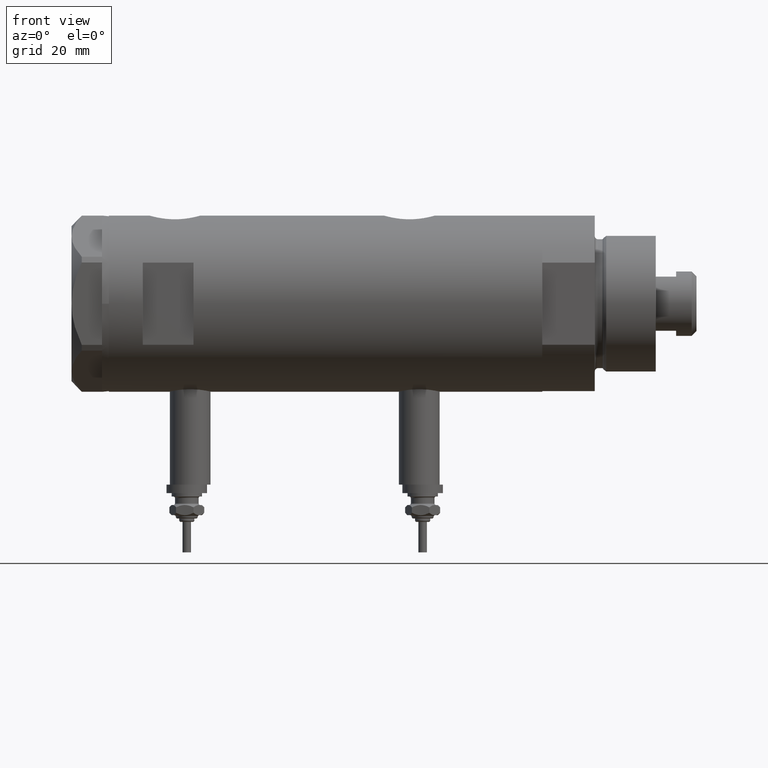
[diagram: clean part render]
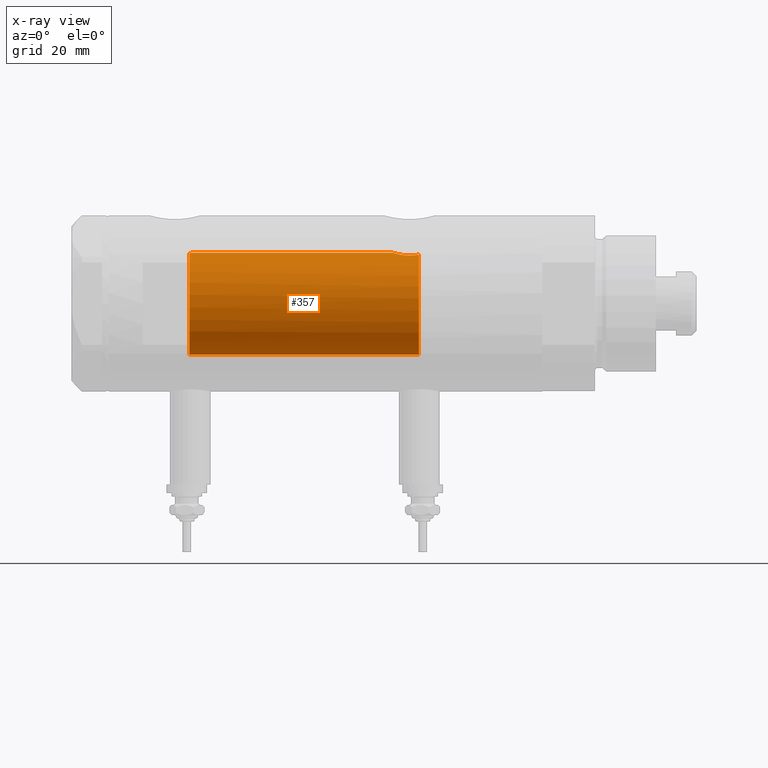
[diagram: x-ray — body ghosted, one internal face saturated and labeled with its STEP entity id]
A machine part, front view, then the same camera in x-ray: the body is ghosted and one INTERNAL B-rep face — a face not visible from any outside direction — is saturated and labeled: STEP entity #357.
In plain terms, the highlighted cylindrical surface (partial cylindrical patch) has radius 15 mm, axis along (1, 0, -0).
Its self-contained STEP definition (entity closure, byte-faithful):
#114 = DIRECTION ( 'NONE',  ( -0.000000000000000000, -0.000000000000000000, -1.000000000000000000 ) ) ;
#333 = VERTEX_POINT ( 'NONE', #761 ) ;
#357 = ADVANCED_FACE ( 'NONE', ( #2739 ), #4703, .F. ) ;
#399 = CARTESIAN_POINT ( 'NONE',  ( 14.46277203719950855, -3.978470183374505975, -27.55000000000000426 ) ) ;
#594 = DIRECTION ( 'NONE',  ( 0.000000000000000000, 0.000000000000000000, -1.000000000000000000 ) ) ;
#691 = VERTEX_POINT ( 'NONE', #3783 ) ;
#744 = CARTESIAN_POINT ( 'NONE',  ( 0.000000000000000000, 0.000000000000000000, -27.55000000000000426 ) ) ;
#761 = CARTESIAN_POINT ( 'NONE',  ( -15.00000000000000000, 0.000000000000000000, -27.55000000000000426 ) ) ;
#859 = B_SPLINE_CURVE_WITH_KNOTS ( 'NONE', 3,
 ( #399, #4333, #938, #973, #6185, #2822, #4269, #3398, #1921, #3780, #3873, #5829, #2882, #4883, #5734, #5795, #4298, #6283, #1316, #2377, #4849, #3846, #1352, #5704, #5290, #4753, #1415, #3812, #3362, #5323 ),
 .UNSPECIFIED., .F., .F.,
 ( 4, 2, 2, 2, 2, 2, 2, 2, 2, 2, 2, 2, 2, 2, 4 ),
 ( 0.004672505804584291961, 0.005337629501999298885, 0.006002753199414305810, 0.006667876896829313602, 0.007333000594244319659, 0.007998124291659327451, 0.008663247989074335242, 0.009328371686489341300, 0.009993495383904347357, 0.01132374277873436988, 0.01265399017356439067, 0.01331911387097940366, 0.01398423756839441666, 0.01464936126580942966, 0.01531448496322444265 ),
 .UNSPECIFIED. ) ;
#938 = CARTESIAN_POINT ( 'NONE',  ( 14.39424372609267522, -4.221002267729139668, -27.17893131093289938 ) ) ;
#973 = CARTESIAN_POINT ( 'NONE',  ( 14.33349657381506681, -4.422893686125039636, -26.78827841538882737 ) ) ;
#1030 = CARTESIAN_POINT ( 'NONE',  ( 14.93900636919599911, -1.364886281976677163, 39.77622504971314044 ) ) ;
#1152 = VERTEX_POINT ( 'NONE', #5684 ) ;
#1316 = CARTESIAN_POINT ( 'NONE',  ( 14.49994286062941207, -3.853373987417221702, -21.74743896782911534 ) ) ;
#1352 = CARTESIAN_POINT ( 'NONE',  ( 14.84733308118440398, -2.144376633039214219, -20.37751912952715472 ) ) ;
#1369 = EDGE_LOOP ( 'NONE', ( #4366, #4994, #6203, #3062, #5851, #5124 ) ) ;
#1415 = CARTESIAN_POINT ( 'NONE',  ( 14.97537530859971966, -0.8874117095427782598, -19.96137464055827948 ) ) ;
#1571 = CARTESIAN_POINT ( 'NONE',  ( 14.98404828787190191, -0.7909490205761877668, 39.63356230794191504 ) ) ;
#1894 = DIRECTION ( 'NONE',  ( -0.000000000000000000, -0.000000000000000000, -1.000000000000000000 ) ) ;
#1921 = CARTESIAN_POINT ( 'NONE',  ( 14.19797987272029438, -4.839174951492910104, -25.29741451501410765 ) ) ;
#1990 = CARTESIAN_POINT ( 'NONE',  ( 14.85289483991917336, -2.102865829523694607, 40.05860377881607093 ) ) ;
#2017 = CARTESIAN_POINT ( 'NONE',  ( 15.00000000000000000, 0.000000000000000000, 39.58500000000000085 ) ) ;
#2237 = CARTESIAN_POINT ( 'NONE',  ( 0.000000000000000000, 0.000000000000000000, 40.15000000000000568 ) ) ;
#2377 = CARTESIAN_POINT ( 'NONE',  ( 14.64727859494137263, -3.248701865452403581, -21.10174013696654782 ) ) ;
#2382 = LINE ( 'NONE', #6250, #5862 ) ;
#2401 = CARTESIAN_POINT ( 'NONE',  ( 14.46277203719950855, -3.978470183374505975, -27.55000000000000426 ) ) ;
#2407 = VERTEX_POINT ( 'NONE', #5979 ) ;
#2522 = VERTEX_POINT ( 'NONE', #2401 ) ;
#2536 = CARTESIAN_POINT ( 'NONE',  ( 0.000000000000000000, 0.000000000000000000, 63.95000000000000995 ) ) ;
#2542 = DIRECTION ( 'NONE',  ( -1.000000000000000000, 0.000000000000000000, 0.000000000000000000 ) ) ;
#2576 = CIRCLE ( 'NONE', #6152, 15.00000000000000000 ) ;
#2739 = FACE_OUTER_BOUND ( 'NONE', #1369, .T. ) ;
#2822 = CARTESIAN_POINT ( 'NONE',  ( 14.25856516724843814, -4.658255869285517825, -26.17044016644936733 ) ) ;
#2882 = CARTESIAN_POINT ( 'NONE',  ( 14.20926245015526135, -4.806160851464704287, -23.96377327795615031 ) ) ;
#3009 = CARTESIAN_POINT ( 'NONE',  ( 14.82638779339054480, -2.275571356824482638, 40.15000000000000568 ) ) ;
#3025 = EDGE_CURVE ( 'NONE', #2522, #2407, #859, .T. ) ;
#3062 = ORIENTED_EDGE ( 'NONE', *, *, #5362, .T. ) ;
#3200 = EDGE_CURVE ( 'NONE', #4576, #691, #6202, .T. ) ;
#3362 = CARTESIAN_POINT ( 'NONE',  ( 15.00000000000000000, -0.2216692655473424256, -19.88499999999999801 ) ) ;
#3398 = CARTESIAN_POINT ( 'NONE',  ( 14.20819413761015326, -4.809312895991455505, -25.51713251522166104 ) ) ;
#3780 = CARTESIAN_POINT ( 'NONE',  ( 14.18781489734108270, -4.868896704194245473, -24.85545969036061464 ) ) ;
#3783 = CARTESIAN_POINT ( 'NONE',  ( 14.82638779339054480, -2.275571356824482638, 40.15000000000000568 ) ) ;
#3812 = CARTESIAN_POINT ( 'NONE',  ( 14.99508877558422704, -0.4434836953032585405, -19.90007684727664028 ) ) ;
#3846 = CARTESIAN_POINT ( 'NONE',  ( 14.81710879718117724, -2.343063746046469387, -20.48067662538953471 ) ) ;
#3873 = CARTESIAN_POINT ( 'NONE',  ( 14.18786347641749757, -4.868757996482117711, -24.63322300400293230 ) ) ;
#4095 = VECTOR ( 'NONE', #6183, 1000.000000000000000 ) ;
#4209 = AXIS2_PLACEMENT_3D ( 'NONE', #2237, #6206, #5157 ) ;
#4210 = EDGE_CURVE ( 'NONE', #1152, #333, #5703, .T. ) ;
#4269 = CARTESIAN_POINT ( 'NONE',  ( 14.23846660849503465, -4.718934182878723682, -25.95401121469808459 ) ) ;
#4298 = CARTESIAN_POINT ( 'NONE',  ( 14.33594561531103473, -4.414979644548147952, -22.69453393419243525 ) ) ;
#4333 = CARTESIAN_POINT ( 'NONE',  ( 14.42775250319760083, -4.105775281508736718, -27.36911445102908758 ) ) ;
#4366 = ORIENTED_EDGE ( 'NONE', *, *, #3200, .F. ) ;
#4576 = VERTEX_POINT ( 'NONE', #5567 ) ;
#4617 = CIRCLE ( 'NONE', #4209, 15.00000000000000000 ) ;
#4690 = EDGE_CURVE ( 'NONE', #1152, #691, #4617, .T. ) ;
#4703 = CYLINDRICAL_SURFACE ( 'NONE', #5771, 15.00000000000000000 ) ;
#4753 = CARTESIAN_POINT ( 'NONE',  ( 14.96064712090283777, -1.106639041422191605, -20.00738179736371336 ) ) ;
#4849 = CARTESIAN_POINT ( 'NONE',  ( 14.72015646623405871, -2.909233045280604113, -20.82572079632733519 ) ) ;
#4883 = CARTESIAN_POINT ( 'NONE',  ( 14.23984499268010673, -4.714778477509576682, -23.53008258614764614 ) ) ;
#4889 = DIRECTION ( 'NONE',  ( -1.000000000000000000, 0.000000000000000000, 0.000000000000000000 ) ) ;
#4994 = ORIENTED_EDGE ( 'NONE', *, *, #6219, .T. ) ;
#4999 = CARTESIAN_POINT ( 'NONE',  ( 14.87720562886504538, -1.924385875533401125, 39.97741675737692901 ) ) ;
#5124 = ORIENTED_EDGE ( 'NONE', *, *, #4690, .T. ) ;
#5157 = DIRECTION ( 'NONE',  ( 1.000000000000000000, 0.000000000000000000, 0.000000000000000000 ) ) ;
#5290 = CARTESIAN_POINT ( 'NONE',  ( 14.92307637240703677, -1.532123959568890248, -20.12726557582076126 ) ) ;
#5323 = CARTESIAN_POINT ( 'NONE',  ( 15.00000000000000000, 5.959273468635536151E-16, -19.88500000000000156 ) ) ;
#5362 = EDGE_CURVE ( 'NONE', #2522, #333, #2576, .T. ) ;
#5567 = CARTESIAN_POINT ( 'NONE',  ( 15.00000000000000000, 0.000000000000000000, 39.58500000000000085 ) ) ;
#5684 = CARTESIAN_POINT ( 'NONE',  ( -15.00000000000000000, 0.000000000000000000, 40.15000000000000568 ) ) ;
#5703 = LINE ( 'NONE', #6109, #4095 ) ;
#5704 = CARTESIAN_POINT ( 'NONE',  ( 14.90017778876745069, -1.739641523727900596, -20.20130925695125867 ) ) ;
#5734 = CARTESIAN_POINT ( 'NONE',  ( 14.25977760983849230, -4.654557688538887739, -23.31736805897653042 ) ) ;
#5771 = AXIS2_PLACEMENT_3D ( 'NONE', #2536, #114, #4889 ) ;
#5795 = CARTESIAN_POINT ( 'NONE',  ( 14.30772250772360188, -4.505024017690379523, -22.90010806953218037 ) ) ;
#5829 = CARTESIAN_POINT ( 'NONE',  ( 14.19858338301463085, -4.837406781463695182, -24.18614104090498884 ) ) ;
#5851 = ORIENTED_EDGE ( 'NONE', *, *, #4210, .F. ) ;
#5862 = VECTOR ( 'NONE', #1894, 1000.000000000000000 ) ;
#5864 = CARTESIAN_POINT ( 'NONE',  ( 14.92029983160078466, -1.555365312915176323, 39.83609703141412695 ) ) ;
#5949 = CARTESIAN_POINT ( 'NONE',  ( 15.00000000000000178, -0.3999014018875941545, 39.58500000000000085 ) ) ;
#5979 = CARTESIAN_POINT ( 'NONE',  ( 15.00000000000000000, 5.959273468635536151E-16, -19.88500000000000156 ) ) ;
#6109 = CARTESIAN_POINT ( 'NONE',  ( -15.00000000000000000, 0.000000000000000000, 63.95000000000000995 ) ) ;
#6152 = AXIS2_PLACEMENT_3D ( 'NONE', #744, #594, #2542 ) ;
#6183 = DIRECTION ( 'NONE',  ( -0.000000000000000000, -0.000000000000000000, -1.000000000000000000 ) ) ;
#6185 = CARTESIAN_POINT ( 'NONE',  ( 14.30602371879161439, -4.510400617436905790, -26.58665028800271557 ) ) ;
#6202 = B_SPLINE_CURVE_WITH_KNOTS ( 'NONE', 3,
 ( #2017, #5949, #1571, #1030, #5864, #4999, #1990, #3009 ),
 .UNSPECIFIED., .F., .F.,
 ( 4, 2, 2, 4 ),
 ( 2.641598245732904660E-19, 0.001182100180564266394, 0.001773150270846399592, 0.002364200361128532789 ),
 .UNSPECIFIED. ) ;
#6203 = ORIENTED_EDGE ( 'NONE', *, *, #3025, .F. ) ;
#6206 = DIRECTION ( 'NONE',  ( 0.000000000000000000, 0.000000000000000000, 1.000000000000000000 ) ) ;
#6219 = EDGE_CURVE ( 'NONE', #4576, #2407, #2382, .T. ) ;
#6250 = CARTESIAN_POINT ( 'NONE',  ( 15.00000000000000000, 1.836970198721029194E-15, 63.95000000000000995 ) ) ;
#6283 = CARTESIAN_POINT ( 'NONE',  ( 14.42796883436190569, -4.108435602805831977, -22.10726922759031510 ) ) ;